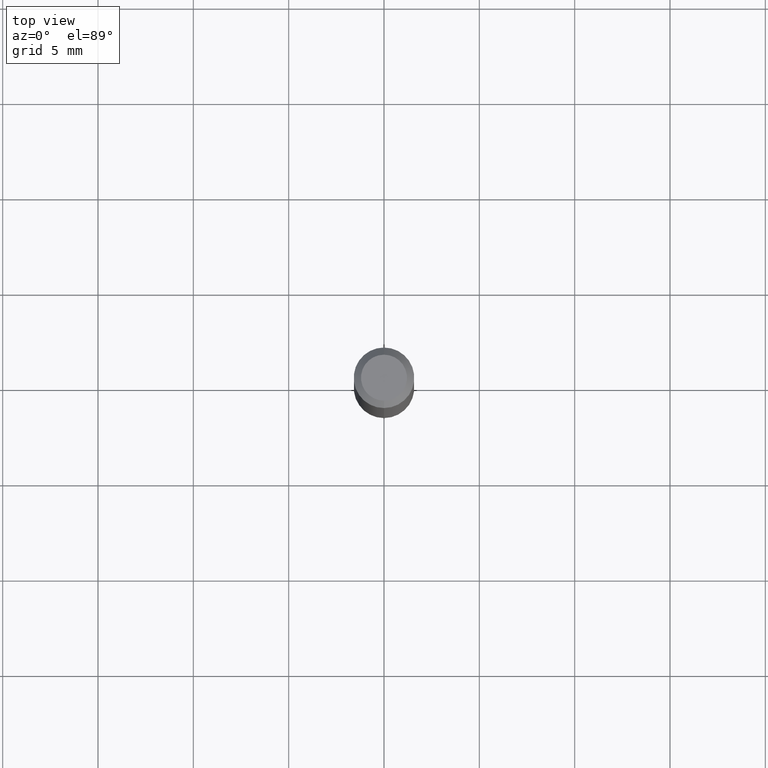
[diagram: clean part render]
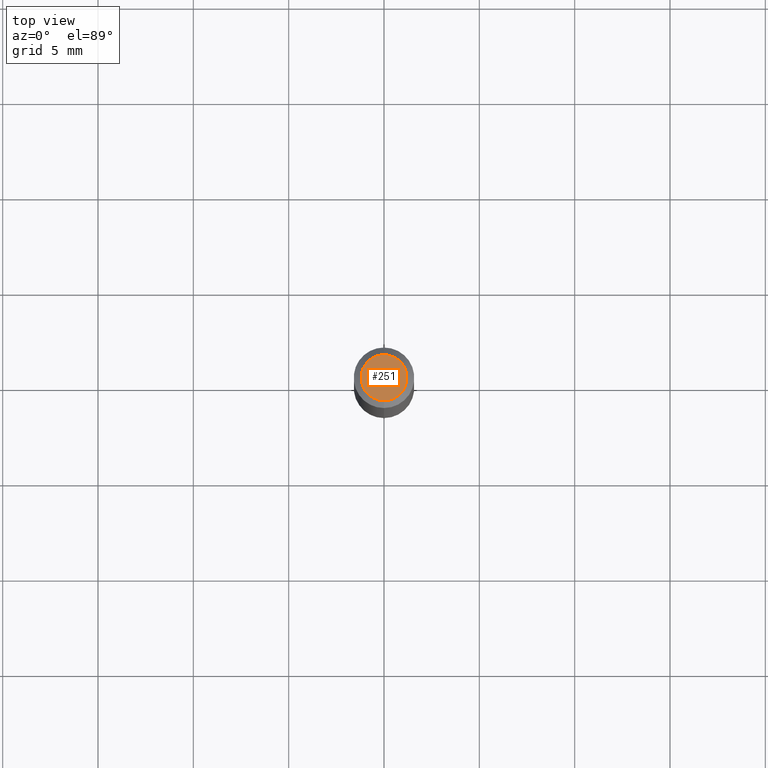
[diagram: same view with one face highlighted and labeled with its STEP entity id]
A machine part, top view. The second image highlights one B-rep face of the part: STEP entity #251.
In plain terms, the highlighted planar face has unit normal (0, -0, -1).
Its self-contained STEP definition (entity closure, byte-faithful):
#6 = AXIS2_PLACEMENT_3D ( 'NONE', #185, #375, #181 ) ;
#20 = DIRECTION ( 'NONE',  ( -6.982962677686266711E-15, -1.000000000000000000, 3.491476869021752779E-15 ) ) ;
#30 = VERTEX_POINT ( 'NONE', #322 ) ;
#62 = DIRECTION ( 'NONE',  ( -2.445471927444732928E-29, 3.491476869021752385E-15, 1.000000000000000000 ) ) ;
#91 = FACE_OUTER_BOUND ( 'NONE', #125, .T. ) ;
#125 = EDGE_LOOP ( 'NONE', ( #464, #323 ) ) ;
#159 = DIRECTION ( 'NONE',  ( 6.982962677686265922E-15, 1.000000000000000000, -3.491476869021752385E-15 ) ) ;
#181 = DIRECTION ( 'NONE',  ( -6.982962677686266711E-15, -1.000000000000000000, 3.491476869021752779E-15 ) ) ;
#185 = CARTESIAN_POINT ( 'NONE',  ( 8.024746679208411750E-45, -1.145718218875301150E-30, -3.281471600286758690E-16 ) ) ;
#239 = PLANE ( 'NONE',  #285 ) ;
#251 = ADVANCED_FACE ( 'NONE', ( #91 ), #239, .F. ) ;
#285 = AXIS2_PLACEMENT_3D ( 'NONE', #396, #360, #159 ) ;
#295 = CIRCLE ( 'NONE', #315, 0.04749999999999999362 ) ;
#305 = EDGE_CURVE ( 'NONE', #30, #361, #494, .T. ) ;
#315 = AXIS2_PLACEMENT_3D ( 'NONE', #381, #62, #20 ) ;
#322 = CARTESIAN_POINT ( 'NONE',  ( -3.773273898774340269E-16, -0.04749999999999999362, -1.623020087501426140E-16 ) ) ;
#323 = ORIENTED_EDGE ( 'NONE', *, *, #305, .T. ) ;
#359 = EDGE_CURVE ( 'NONE', #361, #30, #295, .T. ) ;
#360 = DIRECTION ( 'NONE',  ( 2.445471927444732648E-29, -3.491476869021752385E-15, -1.000000000000000000 ) ) ;
#361 = VERTEX_POINT ( 'NONE', #383 ) ;
#375 = DIRECTION ( 'NONE',  ( -2.445471927444732928E-29, 3.491476869021752385E-15, 1.000000000000000000 ) ) ;
#381 = CARTESIAN_POINT ( 'NONE',  ( 8.024746679208411750E-45, -1.145718218875301150E-30, -3.281471600286758690E-16 ) ) ;
#383 = CARTESIAN_POINT ( 'NONE',  ( 3.840629472727447874E-16, 0.04749999999999999362, -4.939923113072090255E-16 ) ) ;
#396 = CARTESIAN_POINT ( 'NONE',  ( 3.316907271900976096E-16, 0.04749999999999999362, -3.299187312928711649E-16 ) ) ;
#464 = ORIENTED_EDGE ( 'NONE', *, *, #359, .T. ) ;
#494 = CIRCLE ( 'NONE', #6, 0.04749999999999999362 ) ;